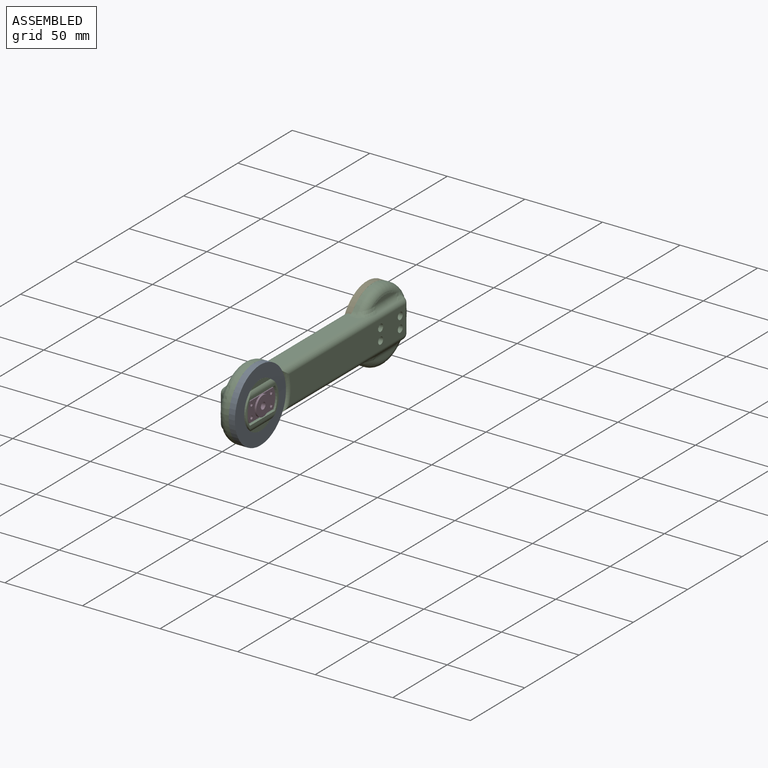
[diagram: assembled view]
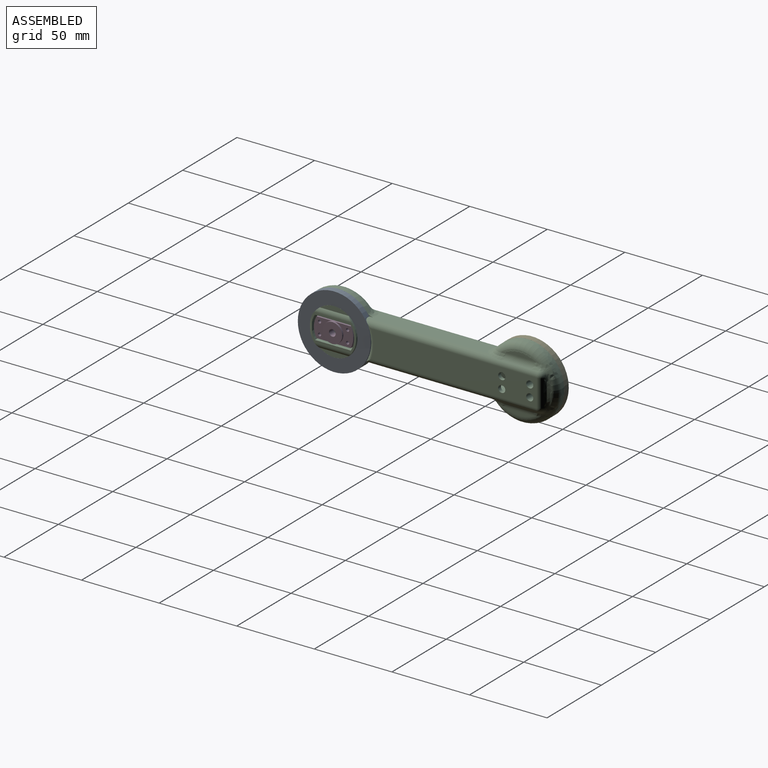
[diagram: assembled view, second angle]
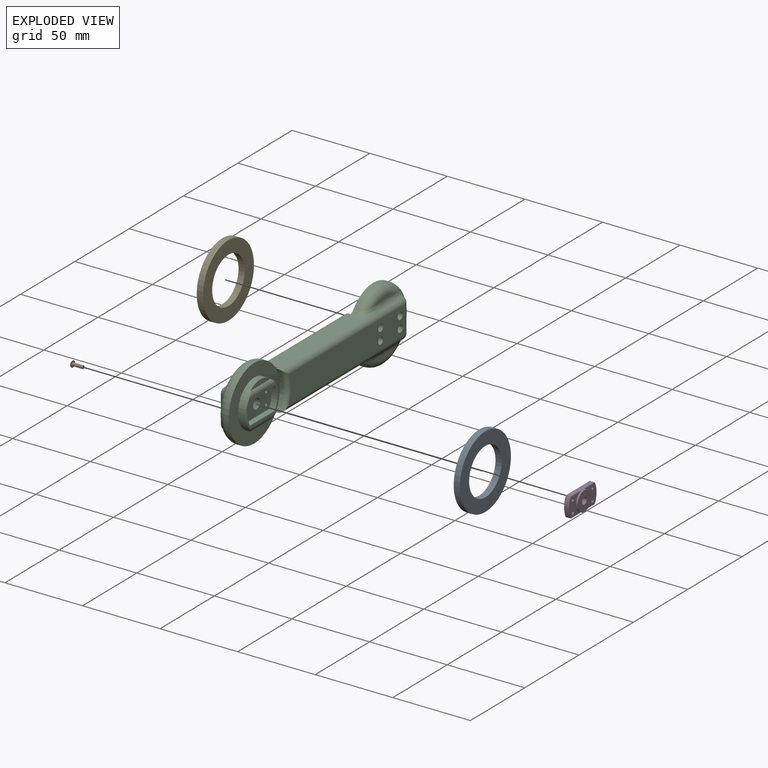
[diagram: exploded view]
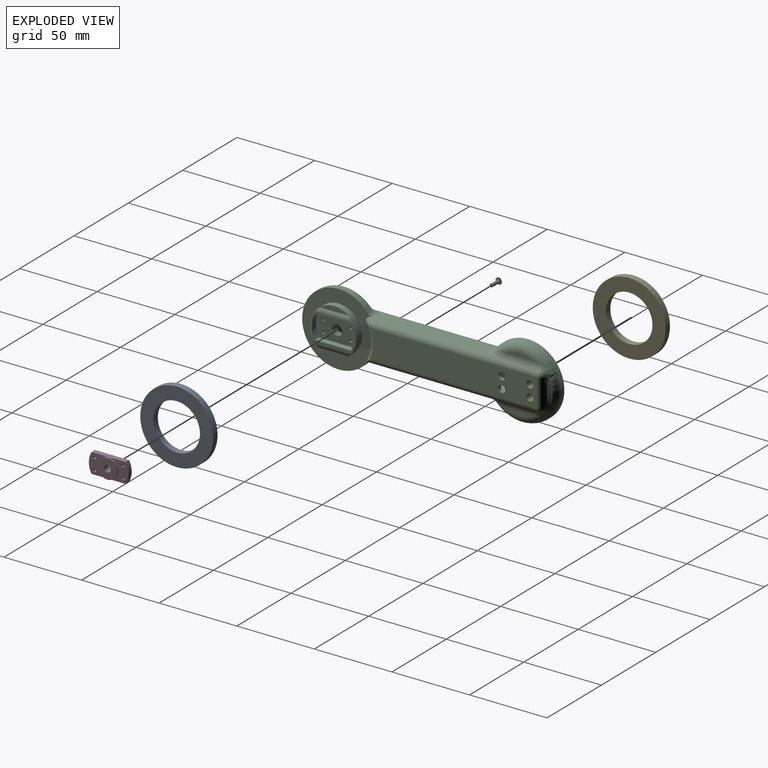
[diagram: exploded view, second angle]
ASSEMBLY  parts=5 mates=4
PART A: 4 faces, bbox 47x47x4 mm
  f0: cylinder r=15mm len=30mm, axis (0,0,-1), area 377mm2, adj f2,f3
  f1: cylinder r=23.5mm len=47mm, axis (0,0,-1), area 590.6mm2, adj f2,f3
  f2: plane 47x47mm, normal (0,0,1), area 1028.1mm2, adj f0,f1
  f3: plane 47x47mm, normal (0,0,-1), area 1028.1mm2, adj f0,f1
PART B: 4 faces, bbox 4.2x4.2x8 mm
  f0: cylinder r=1.02mm len=6.86mm, axis (0,0,1), area 43.8mm2, adj f1,f3
  f1: plane 2.03x2.03mm, normal (0,0,-1), area 3.2mm2, adj f0
  f2: revolved ~4.17x4.17mm, area 17.5mm2, adj f3
  f3: plane 4.17x4.17mm, normal (0,0,-1), area 10.4mm2, adj f0,f2
PART C: 168 faces, bbox 16.5x168.7x50.9 mm
  f0: plane 66.79x8.89mm, normal (0,0,-1), area 593.7mm2, adj f1,f2,f55,f132
  f1: plane 66.79x17.78mm, normal (1,0,0), area 1171.4mm2, adj f0,f6,f55,f129,f130,f131,f132
  f2: plane 66.79x17.78mm, normal (-1,0,0), area 1171.4mm2, adj f0,f6,f22,f26,f30,f55,f132
  f3: cylinder r=3.81mm len=111.55mm, axis (0,-1,0), area 581.3mm2, adj f4,f7,f24,f81,f82,f83,f160,f161
  f4: plane 106.84x17.78mm, normal (1,0,0), area 1815.3mm2, adj f3,f5,f23,f41,f43,f48,f49,f161
  f5: cylinder r=3.81mm len=111.55mm, axis (0,-1,0), area 581.3mm2, adj f4,f8,f25,f67,f68,f69,f160,f161
  f6: plane 66.79x8.89mm, normal (0,0,1), area 593.7mm2, adj f1,f2,f55,f132
  f7: plane 78.31x8.9mm, normal (0,0,-1), area 662.7mm2, adj f3,f10,f13,f51,f84,f85,f157,f158
  f8: plane 78.31x8.9mm, normal (0,0,1), area 662.7mm2, adj f5,f11,f13,f51,f65,f66,f155,f156
  f9: plane 106.84x17.78mm, normal (-1,0,0), area 1815.3mm2, adj f10,f11,f86,f146,f147,f148,f149,f150
  f10: cylinder r=3.81mm len=111.55mm, axis (0,-1,0), area 581.3mm2, adj f7,f9,f51,f86,f151,f152,f153,f154
  f11: cylinder r=3.81mm len=111.55mm, axis (0,-1,0), area 581.3mm2, adj f8,f9,f51,f86,f142,f143,f144,f145
  f12: plane 18.11x2.38mm, normal (1,0,0), area 29.1mm2, adj f64,f68
  f13: plane 47x47mm, normal (-1,0,0), area 1030mm2, adj f7,f8,f51,f52,f54,f65,f85
  f14: plane 28.46x17.78mm, normal (-1,0,0), area 103.7mm2, adj f15,f16,f17,f34,f35,f36,f37,f38
  f15: cylinder r=3.81mm len=24.16mm, axis (0,1,0), area 69mm2, adj f14,f18,f52
  f16: cylinder r=3.81mm len=24.16mm, axis (0,1,0), area 69mm2, adj f14,f19,f52
  f17: cylinder r=3.81mm len=13.23mm, axis (0,0,1), area 14mm2, adj f14,f39,f52
  f18: plane 18.67x3.26mm, normal (-1,0,0), area 41.5mm2, adj f15,f52
  f19: plane 18.67x3.26mm, normal (-1,0,0), area 41.5mm2, adj f16,f52
  f20: plane 12.7x5.72mm, normal (0,-1,0), area 72.6mm2, adj f21,f26,f30,f50
  f21: plane 30.1x12.7mm, normal (-1,0,0), area 349.4mm2, adj f20,f22,f26,f30,f48,f49
  f22: plane 12.7x1.27mm, normal (0,1,0), area 16.1mm2, adj f2,f21,f26,f30
  f23: cylinder r=3.81mm len=17.78mm, axis (0,0,-1), area 68.2mm2, adj f4,f24,f25,f74,f75,f76
  f24: sphere r=3.81mm, area 12.4mm2, adj f3,f23,f77,f78,f80
  f25: sphere r=3.81mm, area 12.4mm2, adj f5,f23,f70,f72,f73
  f26: plane 30.1x5.72mm, normal (0,0,1), area 166.4mm2, adj f2,f20,f21,f22,f50,f55
  f27: cylinder r=1.02mm len=3.81mm, axis (1,0,0), area 24.3mm2, adj f33,f47
  f28: cylinder r=1.02mm len=3.81mm, axis (1,0,0), area 24.3mm2, adj f33,f45
  f29: cylinder r=3.17mm len=6.35mm, axis (-1,0,0), area 88.7mm2, adj f33,f50
  f30: plane 30.1x5.72mm, normal (0,0,-1), area 166.4mm2, adj f2,f20,f21,f22,f50,f55
  f31: cylinder r=1.02mm len=3.81mm, axis (1,0,0), area 24.3mm2, adj f33,f42
  f32: cylinder r=1.02mm len=3.81mm, axis (1,0,0), area 24.3mm2, adj f33,f40
  f33: plane 27.18x14.73mm, normal (-1,0,0), area 338.2mm2, adj f27,f28,f29,f31,f32,f34,f35,f36
  f34: plane 23.14x3.81mm, normal (0,0,-1), area 88.2mm2, adj f14,f33,f35,f38
  f35: cylinder r=13.72mm len=14.73mm, axis (-1,0,0), area 59.3mm2, adj f14,f33,f34,f36
  f36: plane 23.14x3.81mm, normal (0,0,1), area 88.2mm2, adj f14,f33,f35,f37
  f37: cylinder r=13.72mm len=4.74mm, axis (-1,0,0), area 19.6mm2, adj f14,f33,f36,f39
  f38: cylinder r=13.72mm len=4.74mm, axis (-1,0,0), area 19.6mm2, adj f14,f33,f34,f39
  f39: plane 5.25x3.81mm, normal (0,-1,0), area 20mm2, adj f17,f33,f37,f38
  f40: plane 4.57x4.57mm, normal (1,0,0), area 13.2mm2, adj f32,f41
  f41: cylinder r=2.29mm len=8.89mm, axis (1,0,0), area 127.7mm2, adj f4,f40
  f42: plane 4.57x4.57mm, normal (1,0,0), area 13.2mm2, adj f31,f43
  f43: cylinder r=2.29mm len=8.89mm, axis (1,0,0), area 127.7mm2, adj f4,f42
  f44: cylinder r=2.29mm len=4.57mm, axis (1,0,0), area 9.1mm2, adj f45,f50
  f45: plane 4.57x4.57mm, normal (1,0,0), area 13.2mm2, adj f28,f44
  f46: cylinder r=2.29mm len=4.57mm, axis (1,0,0), area 9.1mm2, adj f47,f50
  f47: plane 4.57x4.57mm, normal (1,0,0), area 13.2mm2, adj f27,f46
  f48: cylinder r=2.29mm len=4.57mm, axis (1,0,0), area 36.5mm2, adj f4,f21
  f49: cylinder r=2.29mm len=4.57mm, axis (1,0,0), area 36.5mm2, adj f4,f21
  f50: plane 28.83x12.7mm, normal (1,0,0), area 301.6mm2, adj f20,f26,f29,f30,f44,f46,f55
  f51: cylinder r=23.5mm len=25.4mm, axis (1,0,0), area 73.3mm2, adj f7,f8,f10,f11,f13,f86
  f52: cylinder r=15mm len=30mm, axis (1,0,0), area 435.9mm2, adj f13,f14,f15,f16,f17,f18,f19
  f53: plane 18.11x2.38mm, normal (1,0,0), area 29.1mm2, adj f56,f82
  f54: cylinder r=23.5mm len=47mm, axis (-1,0,0), area 297mm2, adj f13,f56,f57,f58,f59,f60,f61,f62
  f55: plane 17.78x8.89mm, normal (0,-1,0), area 101.6mm2, adj f0,f1,f2,f6,f26,f30,f50
  f56: torus R=18.42mm, axis (1,0,0), area 270.9mm2, adj f53,f54,f57,f80,f81,f83,f84
  f57: bspline ~5.81x5.66mm, area 0.9mm2, adj f54,f56,f58,f79
  f58: bspline ~7.95x7.84mm, area 28.9mm2, adj f54,f57,f59,f78
  f59: bspline ~6.19x5.31mm, area 16.9mm2, adj f54,f58,f60,f76,f77
  f60: torus R=18.42mm, axis (1,0,0), area 102.2mm2, adj f54,f59,f61,f75
  f61: bspline ~7.5x5.56mm, area 16.9mm2, adj f54,f60,f62,f73,f74
  f62: bspline ~8.93x8.31mm, area 28.9mm2, adj f54,f61,f63,f72
  f63: bspline ~5.3x5.01mm, area 0.9mm2, adj f54,f62,f64,f71
  f64: torus R=18.42mm, axis (1,0,0), area 270.9mm2, adj f12,f54,f63,f66,f67,f69,f70
  f65: cylinder r=5.08mm len=3.98mm, axis (-1,0,0), area 11.6mm2, adj f8,f13,f54,f66
  f66: bspline ~7.16x6.09mm, area 18.1mm2, adj f8,f64,f65,f67
  f67: bspline ~15.01x4.94mm, area 43mm2, adj f5,f64,f66,f68
  f68: cylinder r=5.08mm len=18.11mm, axis (0,1,0), area 86mm2, adj f5,f12,f67,f69
  f69: bspline ~9.27x4.61mm, area 17mm2, adj f5,f64,f68,f70
  f70: bspline ~3.92x3.53mm, area 7.3mm2, adj f25,f64,f69,f71
  f71: bspline ~2.58x2.18mm, area 0.1mm2, adj f63,f70,f72
  f72: bspline ~5.41x4.18mm, area 12.3mm2, adj f25,f62,f71,f73
  f73: bspline ~2.38x2.38mm, area 3.7mm2, adj f25,f61,f72,f74
  f74: bspline ~5.95x2.8mm, area 3.3mm2, adj f23,f61,f73,f75
  f75: bspline ~18.61x3.01mm, area 53.7mm2, adj f23,f60,f74,f76
  f76: bspline ~4.61x2.65mm, area 3.3mm2, adj f23,f59,f75,f77
  f77: bspline ~2.49x2.38mm, area 3.7mm2, adj f24,f59,f76,f78
  f78: bspline ~5.11x4.11mm, area 12.3mm2, adj f24,f58,f77,f79
  f79: bspline ~2.61x2.19mm, area 0.2mm2, adj f57,f78,f80
  f80: bspline ~4.85x3.64mm, area 7.3mm2, adj f24,f56,f79,f81
  f81: bspline ~8.03x4.71mm, area 17mm2, adj f3,f56,f80,f82
  f82: cylinder r=5.08mm len=18.11mm, axis (0,1,0), area 86mm2, adj f3,f53,f81,f83
  f83: bspline ~15.01x4.94mm, area 43mm2, adj f3,f56,f82,f84
  f84: bspline ~8.55x6.09mm, area 18.1mm2, adj f7,f56,f83,f85
  f85: cylinder r=5.08mm len=3.98mm, axis (-1,0,0), area 11.6mm2, adj f7,f13,f54,f84
  f86: torus R=26.04mm, axis (1,0,0), area 88.1mm2, adj f9,f10,f11,f51
  f87: cylinder r=1.02mm len=3.81mm, axis (-1,0,0), area 24.3mm2, adj f89,f90
  f88: cylinder r=1.02mm len=3.81mm, axis (-1,0,0), area 24.3mm2, adj f89,f91
  f89: plane 27.18x14.73mm, normal (1,0,0), area 338.2mm2, adj f87,f88,f92,f93,f94,f95,f96,f97
  f90: plane 4.57x4.57mm, normal (-1,0,0), area 13.2mm2, adj f87,f103
  f91: plane 4.57x4.57mm, normal (-1,0,0), area 13.2mm2, adj f88,f104
  f92: plane 5.25x3.81mm, normal (0,1,0), area 20mm2, adj f89,f93,f97,f112
  f93: cylinder r=13.72mm len=4.74mm, axis (1,0,0), area 19.6mm2, adj f89,f92,f94,f115
  f94: plane 23.14x3.81mm, normal (0,0,1), area 88.2mm2, adj f89,f93,f95,f115
  f95: cylinder r=13.72mm len=14.73mm, axis (1,0,0), area 59.3mm2, adj f89,f94,f96,f115
  f96: plane 23.14x3.81mm, normal (0,0,-1), area 88.2mm2, adj f89,f95,f97,f115
  f97: cylinder r=13.72mm len=4.74mm, axis (1,0,0), area 19.6mm2, adj f89,f92,f96,f115
  f98: bspline ~2.51x2.17mm, area 0.2mm2, adj f111,f121,f122
  f99: cylinder r=1.02mm len=3.81mm, axis (-1,0,0), area 24.3mm2, adj f89,f126
  f100: cylinder r=1.02mm len=3.81mm, axis (-1,0,0), area 24.3mm2, adj f89,f127
  f101: bspline ~2.58x2.18mm, area 0.1mm2, adj f105,f135,f136
  f102: cylinder r=3.17mm len=6.35mm, axis (1,0,0), area 88.7mm2, adj f89,f128
  f103: cylinder r=2.29mm len=4.57mm, axis (-1,0,0), area 9.1mm2, adj f90,f128
  f104: cylinder r=2.29mm len=4.57mm, axis (-1,0,0), area 9.1mm2, adj f91,f128
  f105: bspline ~5.3x5.01mm, area 0.9mm2, adj f101,f106,f139,f140
  f106: bspline ~6.27x5.66mm, area 28.9mm2, adj f105,f107,f135,f140
  f107: bspline ~7.5x5.56mm, area 16.9mm2, adj f106,f108,f125,f134,f140
  f108: torus R=18.42mm, axis (-1,0,0), area 102.2mm2, adj f107,f109,f124,f140
  f109: bspline ~6.19x5.31mm, area 16.9mm2, adj f108,f110,f120,f123,f140
  f110: bspline ~6.27x5.66mm, area 28.9mm2, adj f109,f111,f122,f140
  f111: bspline ~5.81x5.66mm, area 0.9mm2, adj f98,f110,f138,f140
  f112: cylinder r=3.81mm len=13.23mm, axis (0,0,-1), area 14mm2, adj f92,f115,f141
  f113: plane 18.67x3.26mm, normal (1,0,0), area 41.5mm2, adj f114,f141
  f114: cylinder r=3.81mm len=24.16mm, axis (0,-1,0), area 69mm2, adj f113,f115,f141
  f115: plane 28.46x17.78mm, normal (1,0,0), area 103.7mm2, adj f93,f94,f95,f96,f97,f112,f114,f116
  f116: cylinder r=3.81mm len=24.16mm, axis (0,-1,0), area 69mm2, adj f115,f117,f141
  f117: plane 18.67x3.26mm, normal (1,0,0), area 41.5mm2, adj f116,f141
  f118: plane 12.7x5.72mm, normal (0,1,0), area 72.6mm2, adj f128,f129,f131,f133
  f119: plane 18.11x2.38mm, normal (-1,0,0), area 29.1mm2, adj f138,f143
  f120: bspline ~2.49x2.38mm, area 3.7mm2, adj f109,f122,f123,f145
  f121: bspline ~4.85x3.64mm, area 7.3mm2, adj f98,f138,f144,f145
  f122: bspline ~5.11x4.11mm, area 12.3mm2, adj f98,f110,f120,f145
  f123: bspline ~4.29x2.65mm, area 3.3mm2, adj f109,f120,f124,f146
  f124: bspline ~18.61x3.01mm, area 53.7mm2, adj f108,f123,f125,f146
  f125: bspline ~5.63x2.8mm, area 3.3mm2, adj f107,f124,f134,f146
  f126: plane 4.57x4.57mm, normal (-1,0,0), area 13.2mm2, adj f99,f147
  f127: plane 4.57x4.57mm, normal (-1,0,0), area 13.2mm2, adj f100,f149
  f128: plane 28.83x12.7mm, normal (-1,0,0), area 301.6mm2, adj f102,f103,f104,f118,f129,f131,f132
  f129: plane 30.1x5.72mm, normal (0,0,1), area 166.4mm2, adj f1,f118,f128,f130,f132,f133
  f130: plane 12.7x1.27mm, normal (0,-1,0), area 16.1mm2, adj f1,f129,f131,f133
  f131: plane 30.1x5.72mm, normal (0,0,-1), area 166.4mm2, adj f1,f118,f128,f130,f132,f133
  f132: plane 17.78x8.89mm, normal (0,1,0), area 101.6mm2, adj f0,f1,f2,f6,f128,f129,f131
  f133: plane 30.1x12.7mm, normal (1,0,0), area 349.4mm2, adj f118,f129,f130,f131,f148,f150
  f134: bspline ~2.38x2.38mm, area 3.7mm2, adj f107,f125,f135,f151
  f135: bspline ~5.41x4.18mm, area 12.3mm2, adj f101,f106,f134,f151
  f136: bspline ~3.92x3.53mm, area 7.3mm2, adj f101,f139,f151,f152
  f137: plane 18.11x2.38mm, normal (-1,0,0), area 29.1mm2, adj f139,f153
  f138: torus R=18.42mm, axis (-1,0,0), area 270.9mm2, adj f111,f119,f121,f140,f142,f144,f156
  f139: torus R=18.42mm, axis (-1,0,0), area 270.8mm2, adj f105,f136,f137,f140,f152,f154,f157
  f140: cylinder r=23.5mm len=47mm, axis (1,0,0), area 296.9mm2, adj f105,f106,f107,f108,f109,f110,f111,f138
  f141: cylinder r=15mm len=30mm, axis (-1,0,0), area 435.9mm2, adj f112,f113,f114,f115,f116,f117,f159
  f142: bspline ~15.01x4.94mm, area 43mm2, adj f11,f138,f143,f156
  f143: cylinder r=5.08mm len=18.11mm, axis (0,-1,0), area 86mm2, adj f11,f119,f142,f144
  f144: bspline ~8.03x4.71mm, area 17mm2, adj f11,f121,f138,f143
  f145: sphere r=3.81mm, area 12.4mm2, adj f11,f120,f121,f122,f146
  f146: cylinder r=3.81mm len=17.78mm, axis (0,0,1), area 68.2mm2, adj f9,f123,f124,f125,f145,f151
  f147: cylinder r=2.29mm len=8.89mm, axis (-1,0,0), area 127.7mm2, adj f9,f126
  f148: cylinder r=2.29mm len=4.57mm, axis (-1,0,0), area 36.5mm2, adj f9,f133
  f149: cylinder r=2.29mm len=8.89mm, axis (-1,0,0), area 127.7mm2, adj f9,f127
  f150: cylinder r=2.29mm len=4.57mm, axis (-1,0,0), area 36.5mm2, adj f9,f133
  f151: sphere r=3.81mm, area 12.4mm2, adj f10,f134,f135,f136,f146
  f152: bspline ~8.1x4.61mm, area 17mm2, adj f10,f136,f139,f153
  f153: cylinder r=5.08mm len=18.11mm, axis (0,-1,0), area 86mm2, adj f10,f137,f152,f154
  f154: bspline ~15.01x4.94mm, area 43mm2, adj f10,f139,f153,f157
  f155: cylinder r=5.08mm len=3.98mm, axis (1,0,0), area 11.6mm2, adj f8,f140,f156,f159
  f156: bspline ~7.7x5.51mm, area 18.1mm2, adj f8,f138,f142,f155
  f157: bspline ~6.31x5.51mm, area 18.1mm2, adj f7,f139,f154,f158
  f158: cylinder r=5.08mm len=3.98mm, axis (1,0,0), area 11.6mm2, adj f7,f140,f157,f159
  f159: plane 47x47mm, normal (1,0,0), area 1030mm2, adj f7,f8,f140,f141,f155,f158,f160
  f160: cylinder r=23.5mm len=25.4mm, axis (-1,0,0), area 73.3mm2, adj f3,f5,f7,f8,f159,f161
  f161: torus R=26.04mm, axis (-1,0,0), area 88.1mm2, adj f3,f4,f5,f160
  f162: plane 2.17x2.17mm, normal (0,1,0), area 3.7mm2, adj f163
  f163: cylinder r=1.08mm len=2.17mm, axis (0,1,0), area 1.7mm2, adj f162,f164
  f164: plane 2.17x2.17mm, normal (0,-1,0), area 3.7mm2, adj f163
  f165: plane 2.17x2.17mm, normal (0,-1,0), area 3.7mm2, adj f166
  f166: cylinder r=1.08mm len=2.17mm, axis (0,-1,0), area 1.7mm2, adj f165,f167
  f167: plane 2.17x2.17mm, normal (0,1,0), area 3.7mm2, adj f166
PART D: 14 faces, bbox 20.2x4.3x25.4 mm
  f0: plane 15.94x15.13mm, normal (0,1,0), area 84.5mm2, adj f3,f6,f7,f11,f12,f13
  f1: plane 15.94x15.13mm, normal (0,1,0), area 84.5mm2, adj f4,f8,f9,f11,f12,f13
  f2: plane 25.4x20.15mm, normal (0,-1,0), area 281.2mm2, adj f3,f4,f5,f6,f7,f8,f9,f12
  f3: cylinder r=12.7mm len=11.73mm, axis (0,-1,0), area 42.2mm2, adj f0,f2,f12,f13
  f4: cylinder r=12.7mm len=11.73mm, axis (0,-1,0), area 42.2mm2, adj f1,f2,f12,f13
  f5: cylinder r=2.14mm len=4.32mm, axis (0,-1,0), area 58.2mm2, adj f2,f10
  f6: cylinder r=1.02mm len=3.18mm, axis (0,-1,0), area 20.3mm2, adj f0,f2
  f7: cylinder r=1.02mm len=3.18mm, axis (0,-1,0), area 20.3mm2, adj f0,f2
  f8: cylinder r=1.02mm len=3.18mm, axis (0,-1,0), area 20.3mm2, adj f1,f2
  f9: cylinder r=1.02mm len=3.18mm, axis (0,-1,0), area 20.3mm2, adj f1,f2
  f10: plane 12.7x12.7mm, normal (0,1,0), area 112.2mm2, adj f5,f11
  f11: cylinder r=6.35mm len=12.7mm, axis (0,-1,0), area 45.6mm2, adj f0,f1,f10
  f12: plane 20.32x8.42mm, normal (0.92,0,0.38), area 69.8mm2, adj f0,f1,f2,f3,f4
  f13: plane 20.32x8.42mm, normal (-0.92,0,-0.38), area 69.8mm2, adj f0,f1,f2,f3,f4
PART E: same geometry as A
PLACE A rot(axis=(0.64,-0.43,-0.64),133.7deg) t=(15.23,13.46,0)mm
PLACE B rot(axis=(-0.19,-0.96,0.19),92.2deg) t=(-1.84,27.77,-16.66)mm
PLACE C t=(8.26,-3.81,0)mm
PLACE D rot(axis=(0.64,0.64,-0.43),133.7deg) t=(12.7,13.46,0)mm
PLACE E rot(axis=(0,1,0),90deg) t=(1.28,131.32,0)mm
MATE fastened A.f0 <-> D.f3  axis (-1,0,0) through (11.23,13.46,0)mm
MATE revolute C.f93 <-> D.f3  axis (1,0,0) through (12.7,13.46,0)mm
MATE fastened E.f0 <-> C.f56  axis (1,0,0) through (5.28,131.32,0)mm
MATE parallel C.f8 <-> D.f13  axis (0,0,1) through (8.25,72.39,12.7)mm
